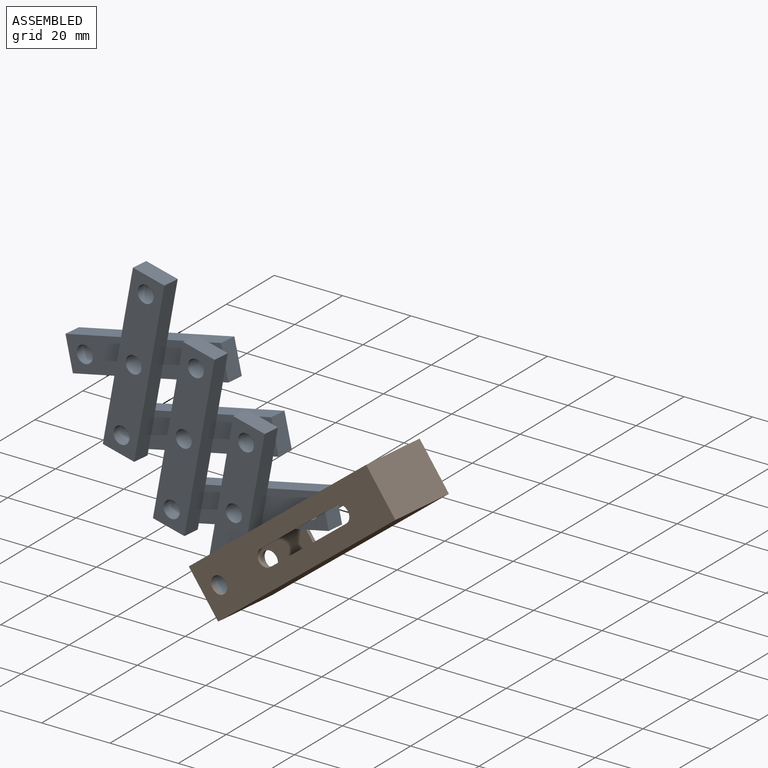
[diagram: assembled view]
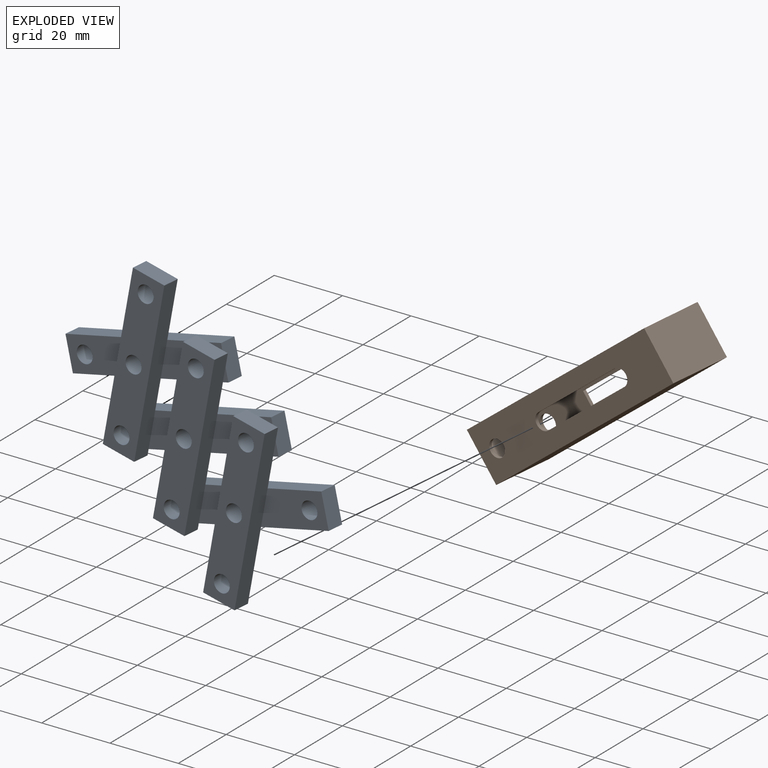
[diagram: exploded view]
GUIDED TOUR — MATED ASSEMBLY WITH SUBASSEMBLIES (Onshape document 298fe6a780f7013b7bb20763, AutoMate assembly 298fe6a780f7013b7bb20763_8cd86269bdc9ea71f313149d_1a75f54e7f84674586b4b7e1_default)

This assembly has 7 component occurrences arranged in 2 top-level units: 1 individual components plus 1 subassembly (S0). The tour has two levels: first the top level, where each subassembly is treated as one rigid unit; then each subassembly is toured internally in its own section (nesting deeper than one subassembly level is flattened into its subassembly's section).

Components are labeled P0..P6 across the whole record; subassembly units are labeled S0..S0. A mate is a constraint between two units; its type names the relative motion it leaves free:
  PARALLEL — keeps the two listed directions parallel,
  REVOLUTE — leaves rotation about the listed axis free (a hinge).
Axis/direction vectors are unit vectors and 'through' points are millimeter coordinates, both in the assembly's world frame.

TOP-LEVEL MATES (between units; each subassembly's internal mates are listed in its own section)
  1. PARALLEL "Parallel 1": S0 <-> P5, direction (-0.086, -0.996, 0.010) through (69.50, -30.16, -67.81) mm
  2. REVOLUTE "Revolute 2": S0 <-> P5, axis (-0.086, -0.996, 0.010) through (46.11, -33.41, -92.24) mm

TOP-LEVEL ASSEMBLY ORDER
  1. S0 — the base component [order verified]
  2. P5 [order verified]
Order-tag legend:
  [order verified] — this step's position reverses a verified removal order: the component was checked to insert without passing through the ones already placed.

Of the 7 component occurrences, 7 carry the full construction recipe — the FeatureScript program that regenerates the part's solid from scratch; the rest are supplied as boundary geometry only. Each toured unit is shown spotlighted twice — assembled, then exploded with a leader line back to its socket (green = recipe-attached component, orange = geometry-only, blue = subassembly unit; the rest desaturated gray).
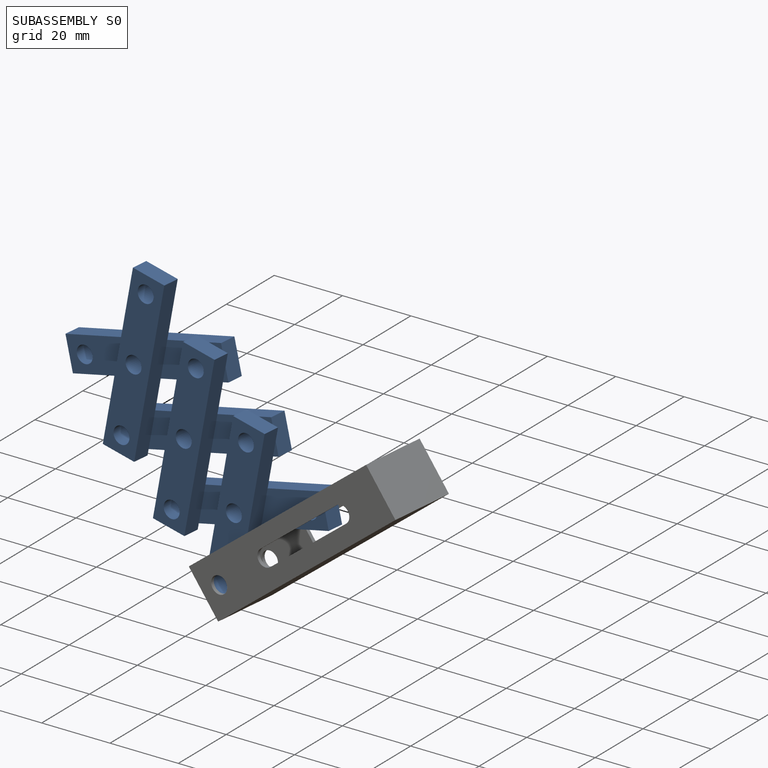
[diagram: subassembly S0 — assembled]
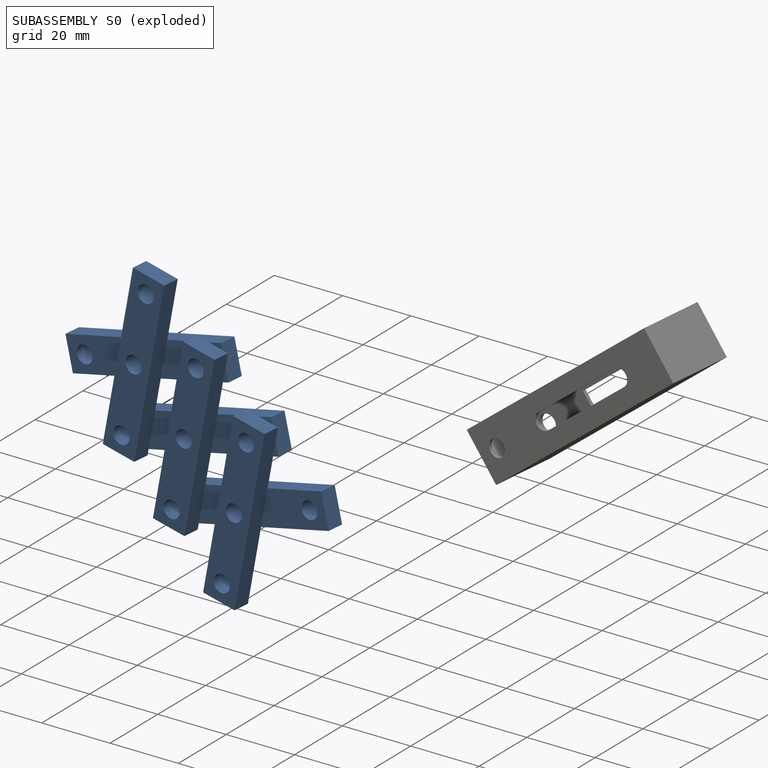
[diagram: subassembly S0 — exploded]
SUBASSEMBLY S0 — 6 components (P0, P1, P2, P3, P4, P6), of which 6 recipe-attached; toured below.
Held by: PARALLEL mate "Parallel 1" to P5; REVOLUTE mate "Revolute 2" to P5.
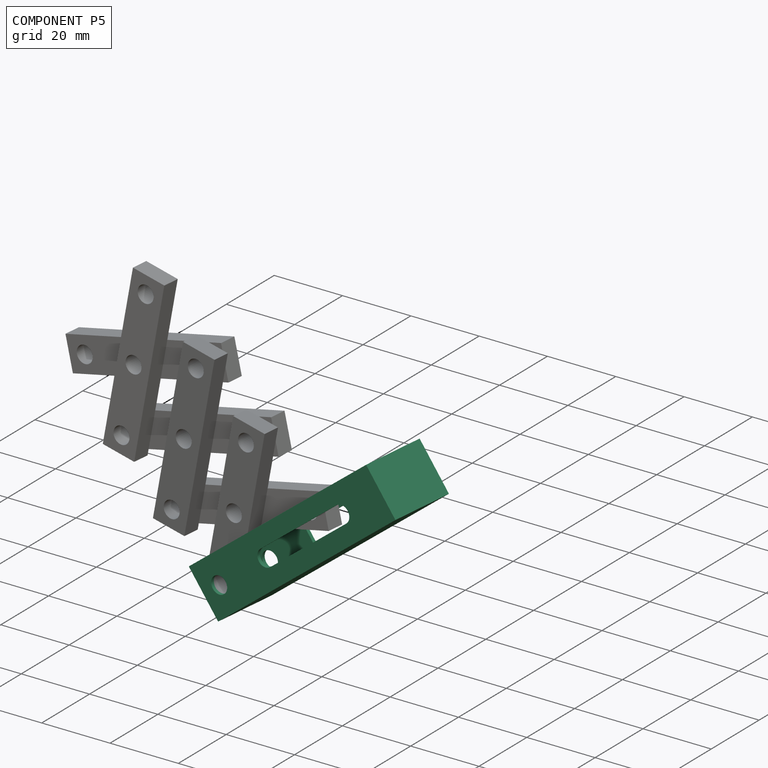
[diagram: component P5 — assembled]
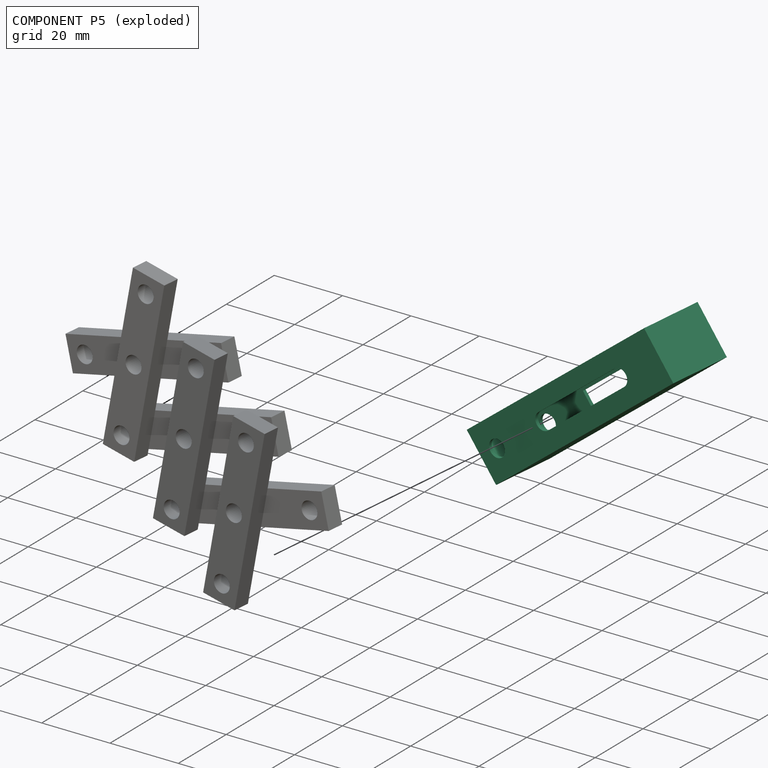
[diagram: component P5 — exploded]
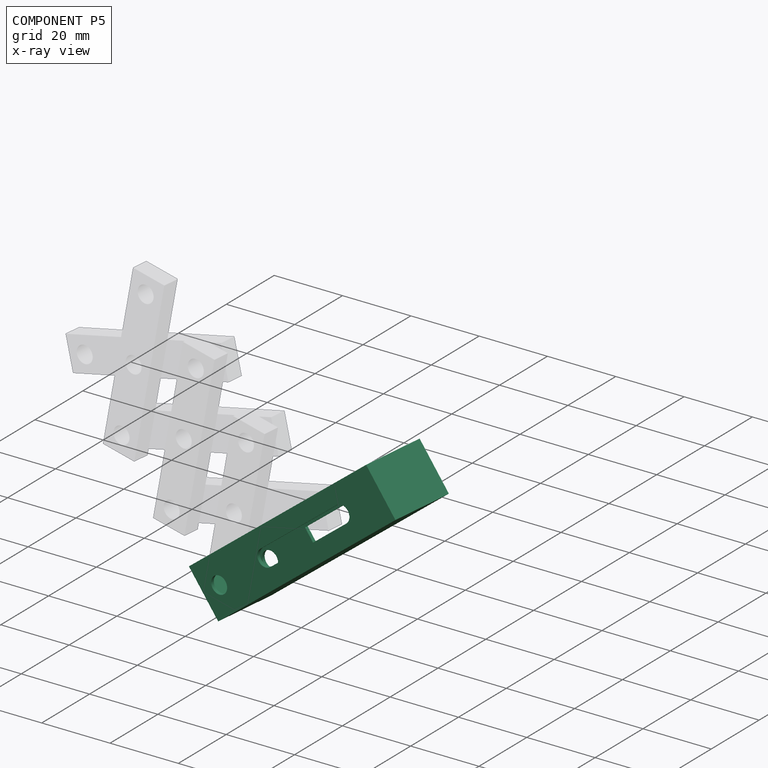
[diagram: component P5 — x-ray view]
COMPONENT P5 — recipe-attached (CADFS 00946091, mesh-verified: the recipe's output STEP matches this component's geometry to below the mesh-comparison resolution (tessellation chordal tolerance ~0.111 mm)).
Held by: PARALLEL mate "Parallel 1" to P0; REVOLUTE mate "Revolute 2" to P0.
Construction recipe (FeatureScript — the CAD program that rebuilds this solid; sketch coordinates are in the units given by the * unit suffixes, e.g. mm):

FeatureScript 1511;
import(path : "onshape/std/geometry.fs", version : "1511.0");
import(path : "onshape/std/common.fs", version : "1511.0");
const mm = millimeter;
const VERTEX = EntityType.VERTEX;
const EDGE = EntityType.EDGE;
const FACE = EntityType.FACE;
const BODY = EntityType.BODY;
function v(x, y){return vector(x, y);}
function OD(order){return orderDisambiguation(order);}
function OSD(set){return originalSetDisambiguation(set);}
function TD(topology){return topologyDisambiguation(topology);}
function TDD(query){return trueDependencyDisambiguation(query);}
function sQuery(a, b, c) {return sketchEntityQuery(a, b, c);}

annotation { "Feature Type Name" : "Feature", "Feature Type Description" : "" }
export const myFeature = defineFeature(function(context is Context, id is Id, definition is map)
    precondition{}
    {
        {
            var Q0;
            Q0=qCreatedBy(makeId("Top.planeOp"),FACE);
            var sketch = newSketch(context, id + "F0", { "sketchPlane" : qUnion([Q0])});
            skLineSegment(sketch, "E0.bottom", {"start": v(35, -8.41) * mm, "end": v(-35, -8.41) * mm});
            skLineSegment(sketch, "E0.top", {"start": v(35, 11.59) * mm, "end": v(-35, 11.59) * mm});
            skLineSegment(sketch, "E0.left", {"start": v(35, -8.41) * mm, "end": v(35, 11.59) * mm});
            skLineSegment(sketch, "E0.right", {"start": v(-35, -8.41) * mm, "end": v(-35, 11.59) * mm});
            skPoint(sketch, "E0.middle", {"position": v(0, 1.59) * mm});
            skSolve(sketch);
        }
        {
            var Q0;
            Q0=makeQuery(id+"F0.imprint","IMPRINT",FACE,{"disambiguationData":[TD([[makeQuery(id+"F0.imprint","IMPRINT",EDGE,{"derivedFrom":sQuery(id+"F0.wireOp",EDGE,"E0.bottom")}),-1.0]])]});
            extrude(context, id + "F1", {"entities" : qUnion([Q0]), "depth" : 15 * mm, "offsetDistance" : 25 * mm});
        }
        {
            var Q0;
            Q0=makeQuery(id+"F1.opExtrude","SWEPT_FACE",FACE,{"disambiguationData":[OSD([sQuery(id+"F0.wireOp",EDGE,"E0.bottom")])]});
            var sketch = newSketch(context, id + "F2", { "sketchPlane" : qUnion([Q0])});
            skCircle(sketch, "E1", {"center": v(-28.81, 7.5) * mm, "radius": 2.5 * mm});
            skPoint(sketch, "E2.middle", {"position": v(4.53, 7.63) * mm});
            skLineSegment(sketch, "E3.bottom", {"start": v(22.03, 5.13) * mm, "end": v(-12.97, 5.13) * mm});
            skLineSegment(sketch, "E3.top", {"start": v(22.03, 10.13) * mm, "end": v(-12.97, 10.13) * mm});
            skLineSegment(sketch, "E3.left", {"start": v(22.03, 5.13) * mm, "end": v(22.03, 10.13) * mm});
            skLineSegment(sketch, "E3.right", {"start": v(-12.97, 5.13) * mm, "end": v(-12.97, 10.13) * mm});
            skSolve(sketch);
        }
        {
            var Q0;
            Q0=makeQuery(id+"F1.opExtrude","CAP_FACE",FACE,{"disambiguationData":[OSD([sQuery(id+"F0.wireOp",EDGE,"E0.bottom"),sQuery(id+"F0.wireOp",EDGE,"E0.top"),sQuery(id+"F0.wireOp",EDGE,"E0.left"),sQuery(id+"F0.wireOp",EDGE,"E0.right")])],"isStart":false});
            shell(context, id + "F3", {"entities" : qUnion([Q0]), "thickness" : 1 * mm});
        }
        {
            var Q0;
            Q0=sQuery(id+"F2.wireOp",VERTEX,"E1.center");
            var Q1;
            Q1=makeQuery(id+"F1.opExtrude","SWEPT_BODY",BODY,{"disambiguationData":[OSD([sQuery(id+"F0.wireOp",EDGE,"E0.bottom"),sQuery(id+"F0.wireOp",EDGE,"E0.top"),sQuery(id+"F0.wireOp",EDGE,"E0.left"),sQuery(id+"F0.wireOp",EDGE,"E0.right")])]});
            hole(context, id + "F4", {"style" : HoleStyle.SIMPLE, "endStyle" : HoleEndStyle.THROUGH, "holeDiameter" : 5 * mm, "majorDiameter" : 5 * mm, "isTappedThrough" : true, "tappedDepth" : 12 * mm, "tapClearance" : 3, "locations" : qUnion([Q0]), "scope" : qUnion([Q1])});
        }
        {
            var Q0;
            Q0=makeQuery(id+"F2.imprint","IMPRINT",FACE,{"disambiguationData":[TD([[makeQuery(id+"F2.imprint","IMPRINT",EDGE,{"derivedFrom":sQuery(id+"F2.wireOp",EDGE,"E3.bottom")}),-1.0]])]});
            extrude(context, id + "F5", {"entities" : qUnion([Q0]), "operationType" : NewBodyOperationType.REMOVE, "oppositeDirection" : true, "depth" : 25 * mm, "offsetDistance" : 25 * mm});
        }
        {
            var Q0;
            {var subQ0=sQuery(id+"F0.wireOp",EDGE,"E0.bottom");var subQ1=sQuery(id+"F2.wireOp",EDGE,"E3.top");var subQ2=sQuery(id+"F2.wireOp",EDGE,"E3.right");Q0=makeQuery(id+"F5.boolean.opBoolean","COPY",EDGE,{"disambiguationData":[TD([makeQuery(id+"F1.opExtrude","SWEPT_FACE",FACE,{"disambiguationData":[OSD([subQ0])]})])],"derivedFrom":makeQuery(id+"F5.opExtrude","SWEPT_EDGE",EDGE,{"disambiguationData":[OSD([subQ1,subQ2])]})});}
            var Q1;
            {var subQ0=sQuery(id+"F0.wireOp",EDGE,"E0.bottom");var subQ1=sQuery(id+"F2.wireOp",EDGE,"E3.bottom");var subQ2=sQuery(id+"F2.wireOp",EDGE,"E3.right");Q1=makeQuery(id+"F5.boolean.opBoolean","COPY",EDGE,{"disambiguationData":[TD([makeQuery(id+"F1.opExtrude","SWEPT_FACE",FACE,{"disambiguationData":[OSD([subQ0])]})])],"derivedFrom":makeQuery(id+"F5.opExtrude","SWEPT_EDGE",EDGE,{"disambiguationData":[OSD([subQ1,subQ2])]})});}
            var Q2;
            {var subQ0=sQuery(id+"F0.wireOp",EDGE,"E0.bottom");var subQ1=sQuery(id+"F2.wireOp",EDGE,"E3.left");var subQ2=sQuery(id+"F2.wireOp",EDGE,"E3.bottom");Q2=makeQuery(id+"F5.boolean.opBoolean","COPY",EDGE,{"disambiguationData":[TD([makeQuery(id+"F1.opExtrude","SWEPT_FACE",FACE,{"disambiguationData":[OSD([subQ0])]})])],"derivedFrom":makeQuery(id+"F5.opExtrude","SWEPT_EDGE",EDGE,{"disambiguationData":[OSD([subQ2,subQ1])]})});}
            var Q3;
            {var subQ0=sQuery(id+"F0.wireOp",EDGE,"E0.bottom");var subQ1=sQuery(id+"F2.wireOp",EDGE,"E3.left");var subQ2=sQuery(id+"F2.wireOp",EDGE,"E3.top");Q3=makeQuery(id+"F5.boolean.opBoolean","COPY",EDGE,{"disambiguationData":[TD([makeQuery(id+"F1.opExtrude","SWEPT_FACE",FACE,{"disambiguationData":[OSD([subQ0])]})])],"derivedFrom":makeQuery(id+"F5.opExtrude","SWEPT_EDGE",EDGE,{"disambiguationData":[OSD([subQ2,subQ1])]})});}
            fillet(context, id + "F6", {"entities" : qUnion([Q0, Q1, Q2, Q3]), "radius" : 2.5 * mm, "tangentPropagation" : true, "allowEdgeOverflow" : false});
        }
    });
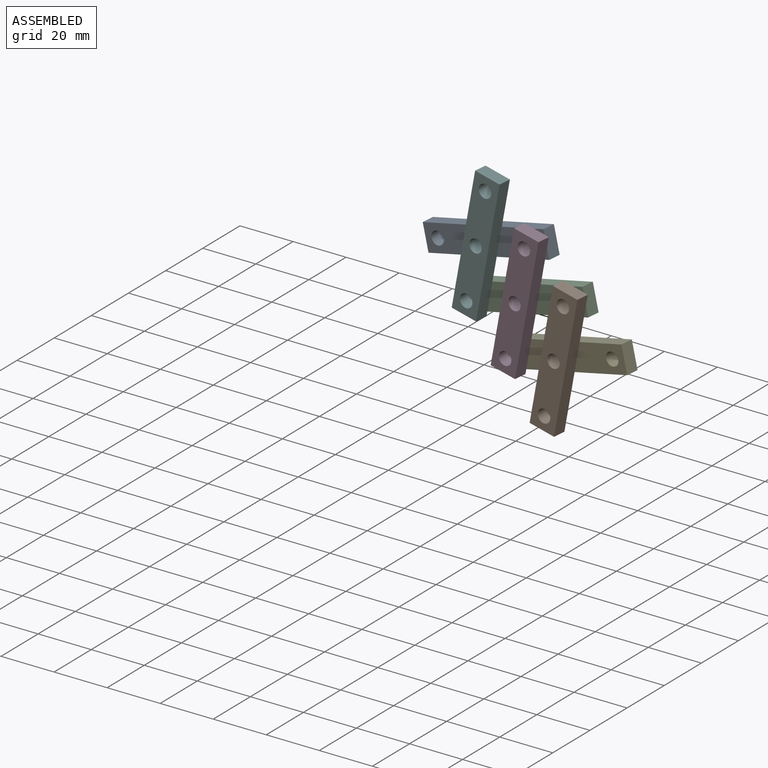
[diagram: subassembly S0 — assembled view]
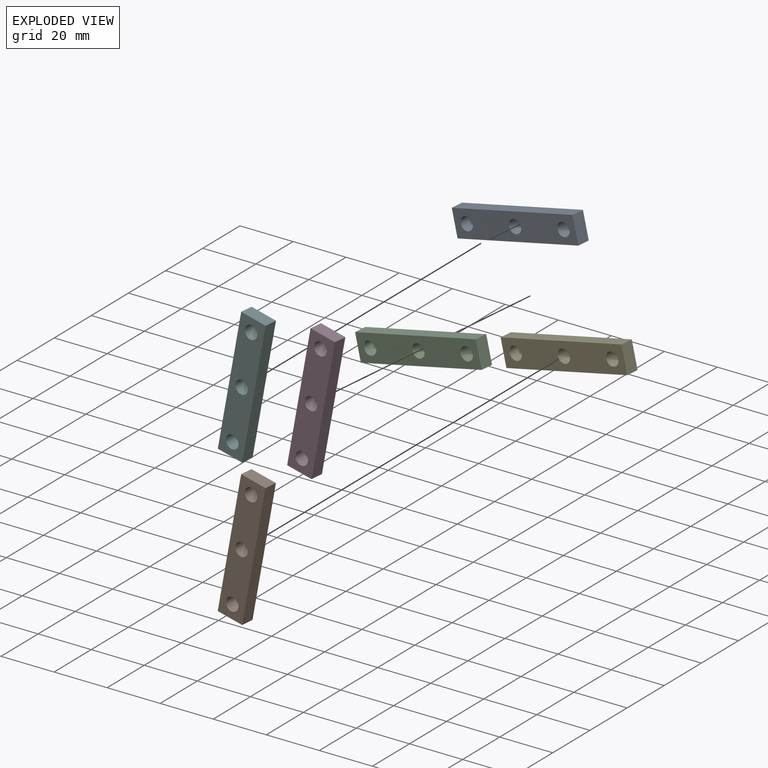
[diagram: subassembly S0 — exploded view]
SUBASSEMBLY S0 TOUR — 6 components, shown here in isolation at its own camera.

INTERNAL MATES
  1. REVOLUTE "Revolute 3": P0 <-> P3, axis (-0.086, -0.996, 0.010) through (38.03, -27.17, -38.08) mm
  2. REVOLUTE "Revolute 5": P1 <-> P2, axis (0.086, 0.996, -0.010) through (53.76, -28.67, -52.94) mm
  3. REVOLUTE "Revolute 7": P4 <-> P1, axis (-0.086, -0.996, 0.010) through (50.15, -28.55, -72.61) mm
  4. REVOLUTE "Revolute 2": P6 <-> P2, axis (0.086, 0.996, -0.010) through (15.07, -25.43, -62.56) mm
  5. REVOLUTE "Revolute 6": P3 <-> P4, axis (0.086, 0.996, -0.010) through (30.80, -26.93, -77.42) mm
  6. REVOLUTE "Revolute 4": P0 <-> P6, axis (-0.086, -0.996, 0.010) through (18.68, -25.55, -42.89) mm
  7. REVOLUTE "Revolute 1": P2 <-> P3, axis (-0.086, -0.996, 0.010) through (34.42, -27.05, -57.75) mm
  8. REVOLUTE "Revolute 6": P3 <-> P4, axis (0.086, 0.996, -0.010) through (30.80, -26.93, -77.42) mm
  9. REVOLUTE "Revolute 2": P6 <-> P2, axis (0.086, 0.996, -0.010) through (15.07, -25.43, -62.56) mm
  10. REVOLUTE "Revolute 4": P0 <-> P6, axis (-0.086, -0.996, 0.010) through (18.68, -25.55, -42.89) mm
  11. REVOLUTE "Revolute 5": P1 <-> P2, axis (0.086, 0.996, -0.010) through (53.76, -28.67, -52.94) mm
  12. REVOLUTE "Revolute 3": P0 <-> P3, axis (-0.086, -0.996, 0.010) through (38.03, -27.17, -38.08) mm
  13. REVOLUTE "Revolute 1": P2 <-> P3, axis (-0.086, -0.996, 0.010) through (34.42, -27.05, -57.75) mm
  14. REVOLUTE "Revolute 7": P4 <-> P1, axis (-0.086, -0.996, 0.010) through (50.15, -28.55, -72.61) mm

ASSEMBLY ORDER (within the subassembly)
  1. P4 — the base component [order verified]
  2. P0 [order verified]
  3. P2 [order verified]
  4. P3 [order verified]
  5. P6 [order verified]
  6. P1 [order verified]
Order-tag legend:
  [order verified] — this step's position reverses a verified removal order: the component was checked to insert without passing through the ones already placed.
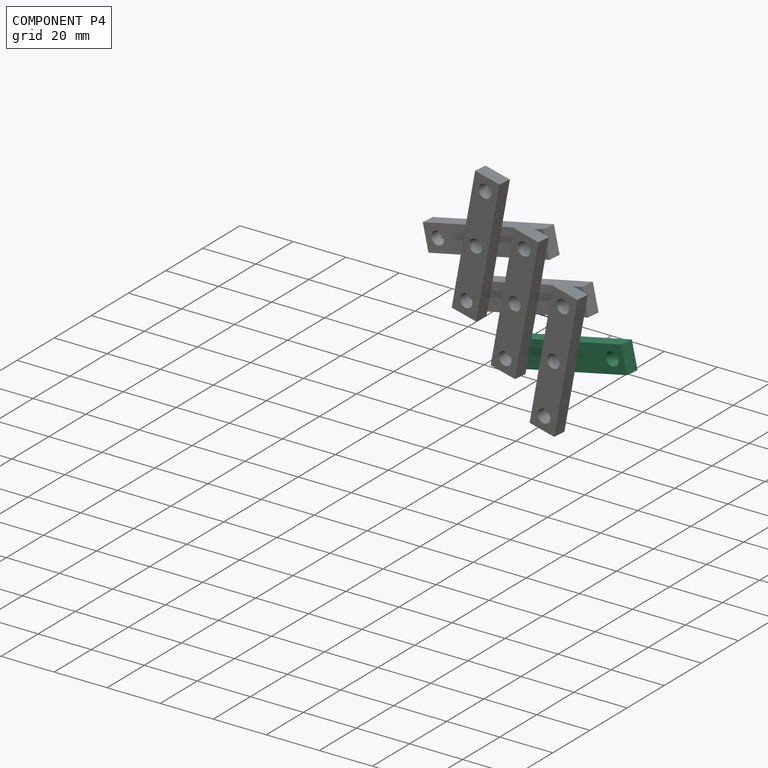
[diagram: component P4 — assembled]
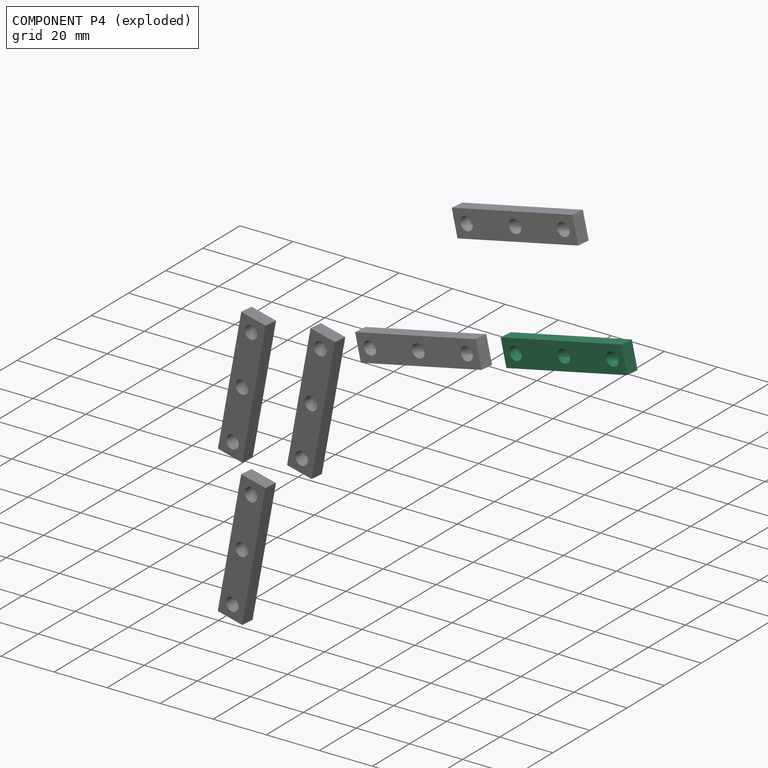
[diagram: component P4 — exploded]
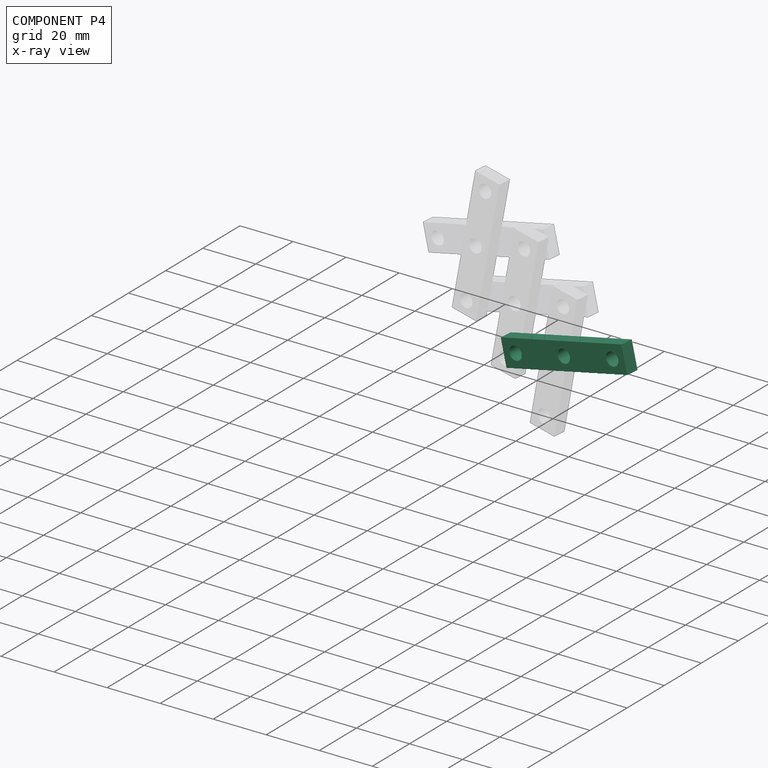
[diagram: component P4 — x-ray view]
COMPONENT P4 — same part as P0 (CADFS 00946090); its construction recipe is shown at P0.
Held by: REVOLUTE mate "Revolute 7" to P1; REVOLUTE mate "Revolute 6" to P3; REVOLUTE mate "Revolute 6" to P3; REVOLUTE mate "Revolute 7" to P1.
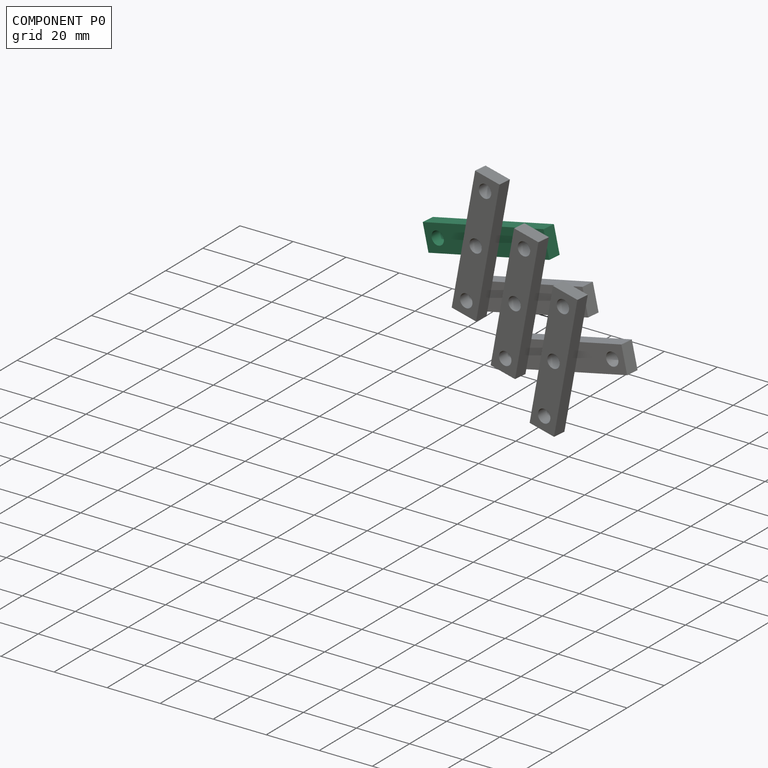
[diagram: component P0 — assembled]
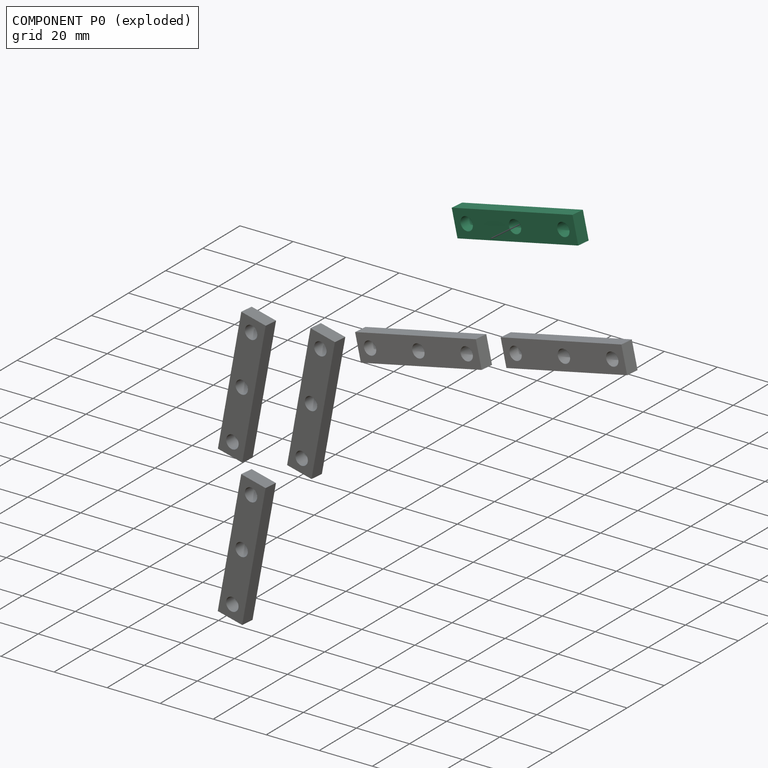
[diagram: component P0 — exploded]
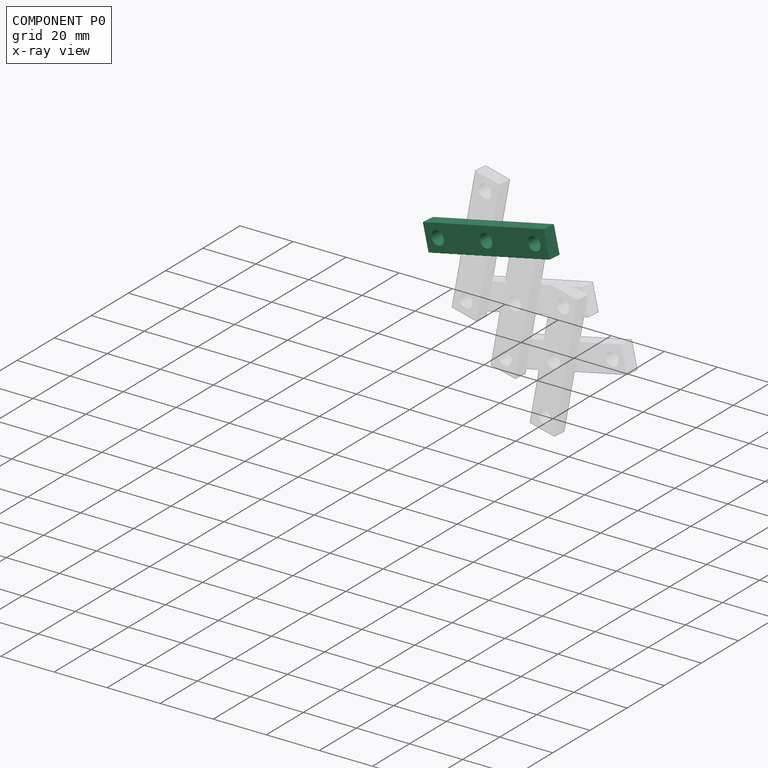
[diagram: component P0 — x-ray view]
COMPONENT P0 — recipe-attached (CADFS 00946090, mesh-verified: the recipe's output STEP matches this component's geometry to below the mesh-comparison resolution (tessellation chordal tolerance ~0.0769 mm)).
Held by: REVOLUTE mate "Revolute 3" to P3; REVOLUTE mate "Revolute 4" to P6; REVOLUTE mate "Revolute 4" to P6; REVOLUTE mate "Revolute 3" to P3.
Construction recipe (FeatureScript — the CAD program that rebuilds this solid; sketch coordinates are in the units given by the * unit suffixes, e.g. mm):

FeatureScript 1511;
import(path : "onshape/std/geometry.fs", version : "1511.0");
import(path : "onshape/std/common.fs", version : "1511.0");
const mm = millimeter;
const VERTEX = EntityType.VERTEX;
const EDGE = EntityType.EDGE;
const FACE = EntityType.FACE;
const BODY = EntityType.BODY;
function v(x, y){return vector(x, y);}
function OD(order){return orderDisambiguation(order);}
function OSD(set){return originalSetDisambiguation(set);}
function TD(topology){return topologyDisambiguation(topology);}
function TDD(query){return trueDependencyDisambiguation(query);}
function sQuery(a, b, c) {return sketchEntityQuery(a, b, c);}

annotation { "Feature Type Name" : "Feature", "Feature Type Description" : "" }
export const myFeature = defineFeature(function(context is Context, id is Id, definition is map)
    precondition{}
    {
        {
            var Q0;
            Q0=qCreatedBy(makeId("Front.planeOp"),FACE);
            var sketch = newSketch(context, id + "F0", { "sketchPlane" : qUnion([Q0])});
            skLineSegment(sketch, "E0.bottom", {"start": v(25, -5) * mm, "end": v(-25, -5) * mm});
            skLineSegment(sketch, "E0.top", {"start": v(25, 5) * mm, "end": v(-25, 5) * mm});
            skLineSegment(sketch, "E0.left", {"start": v(25, -5) * mm, "end": v(25, 5) * mm});
            skLineSegment(sketch, "E0.right", {"start": v(-25, -5) * mm, "end": v(-25, 5) * mm});
            skPoint(sketch, "E0.middle", {"position": v(0, 0) * mm});
            skSolve(sketch);
        }
        {
            var Q0;
            Q0=makeQuery(id+"F0.imprint","IMPRINT",FACE,{"disambiguationData":[TD([[makeQuery(id+"F0.imprint","IMPRINT",EDGE,{"derivedFrom":sQuery(id+"F0.wireOp",EDGE,"E0.bottom")}),-1.0]])]});
            var sketch = newSketch(context, id + "F1", { "sketchPlane" : qUnion([Q0])});
            skCircle(sketch, "E1", {"center": v(0, 0) * mm, "radius": 2.5 * mm});
            skCircle(sketch, "E2", {"center": v(-20, 0) * mm, "radius": 2.5 * mm});
            skCircle(sketch, "E3", {"center": v(20, 0) * mm, "radius": 2.5 * mm});
            skSolve(sketch);
        }
        {
            var Q0;
            Q0=makeQuery(id+"F1.imprint","IMPRINT",FACE,{"disambiguationData":[TD([[makeQuery(id+"F1.imprint","IMPRINT",EDGE,{"derivedFrom":sQuery(id+"F1.wireOp",EDGE,"E1")}),-1.0]])]});
            extrude(context, id + "F2", {"entities" : qUnion([Q0]), "depth" : 5 * mm, "offsetDistance" : 25 * mm});
        }
    });
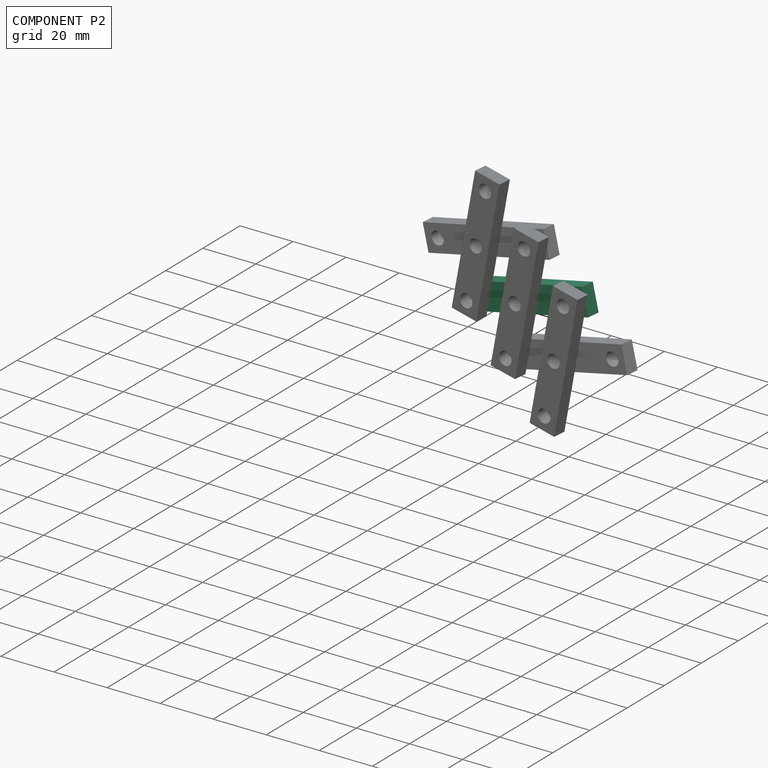
[diagram: component P2 — assembled]
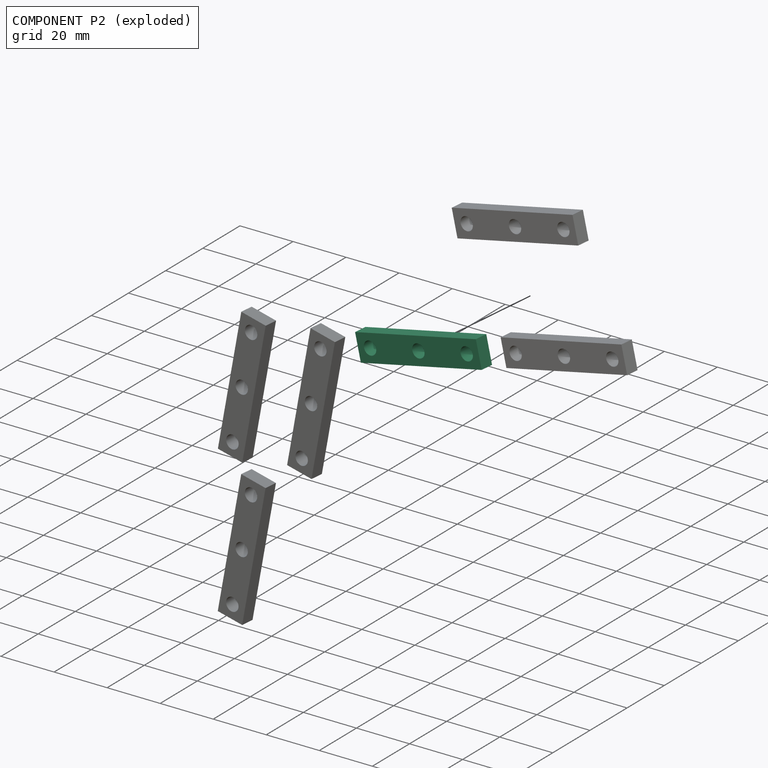
[diagram: component P2 — exploded]
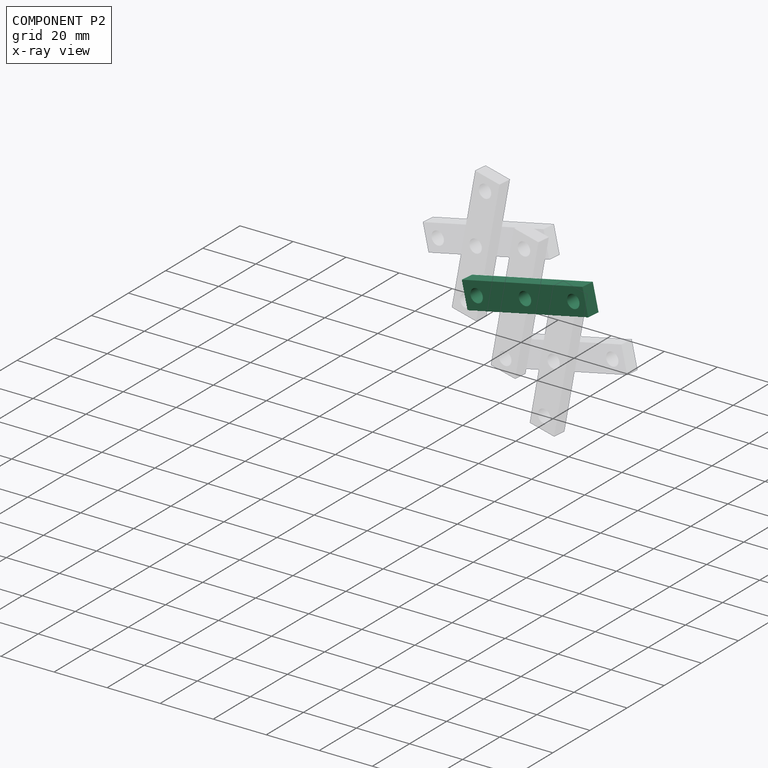
[diagram: component P2 — x-ray view]
COMPONENT P2 — same part as P0 (CADFS 00946090); its construction recipe is shown at P0.
Held by: REVOLUTE mate "Revolute 5" to P1; REVOLUTE mate "Revolute 2" to P6; REVOLUTE mate "Revolute 1" to P3; REVOLUTE mate "Revolute 2" to P6; REVOLUTE mate "Revolute 5" to P1; REVOLUTE mate "Revolute 1" to P3.
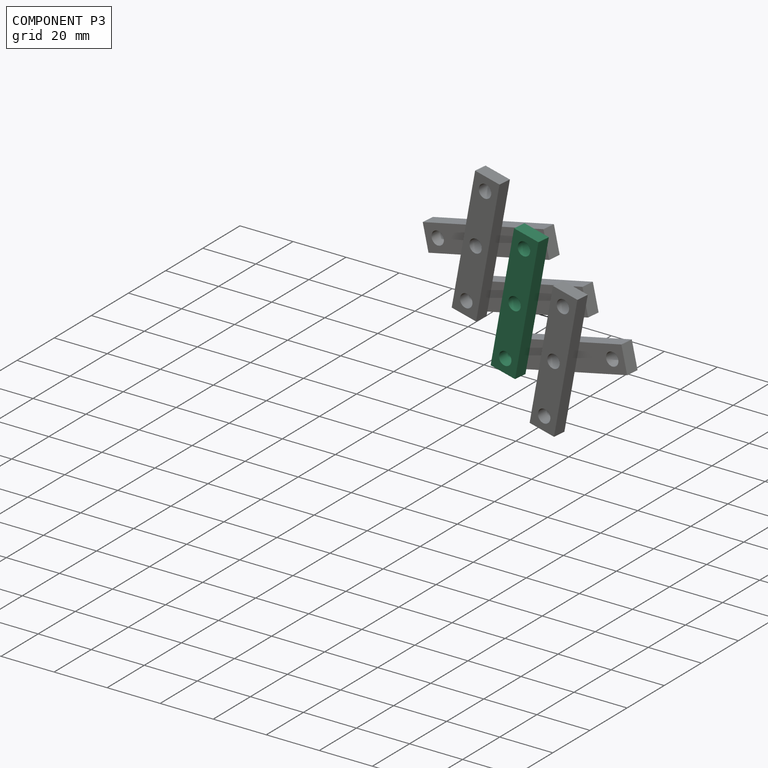
[diagram: component P3 — assembled]
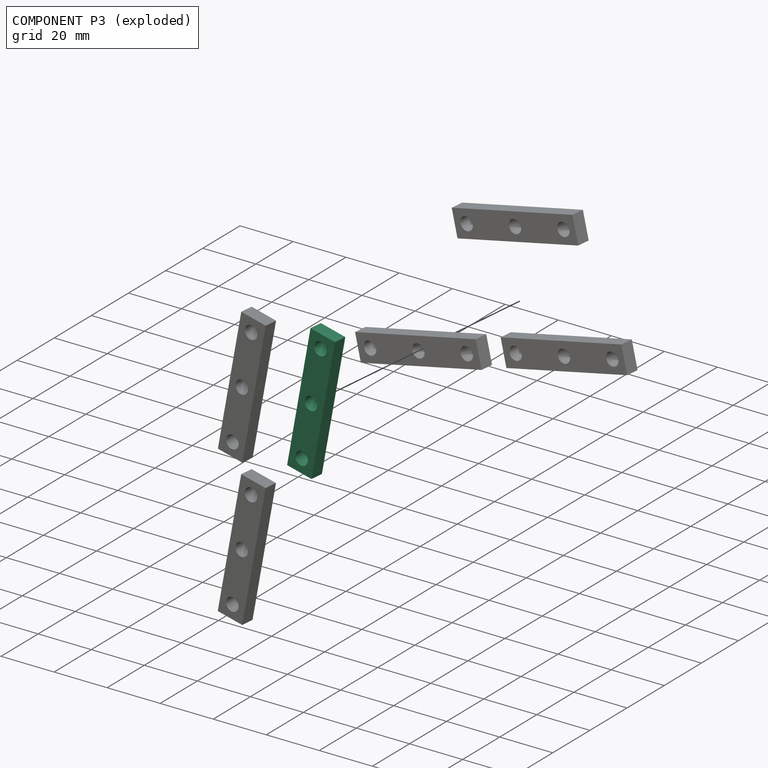
[diagram: component P3 — exploded]
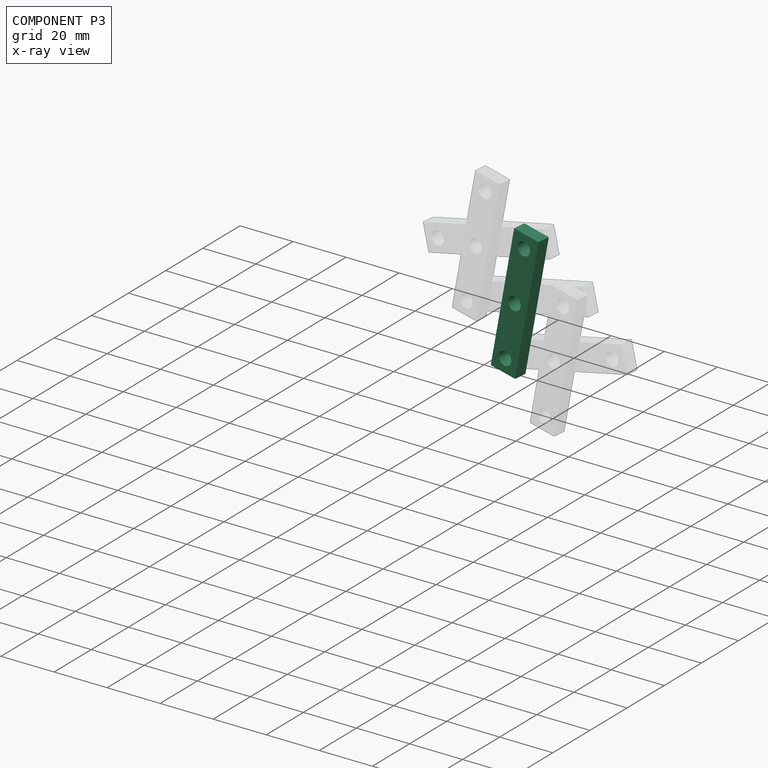
[diagram: component P3 — x-ray view]
COMPONENT P3 — same part as P0 (CADFS 00946090); its construction recipe is shown at P0.
Held by: REVOLUTE mate "Revolute 3" to P0; REVOLUTE mate "Revolute 6" to P4; REVOLUTE mate "Revolute 1" to P2; REVOLUTE mate "Revolute 6" to P4; REVOLUTE mate "Revolute 3" to P0; REVOLUTE mate "Revolute 1" to P2.
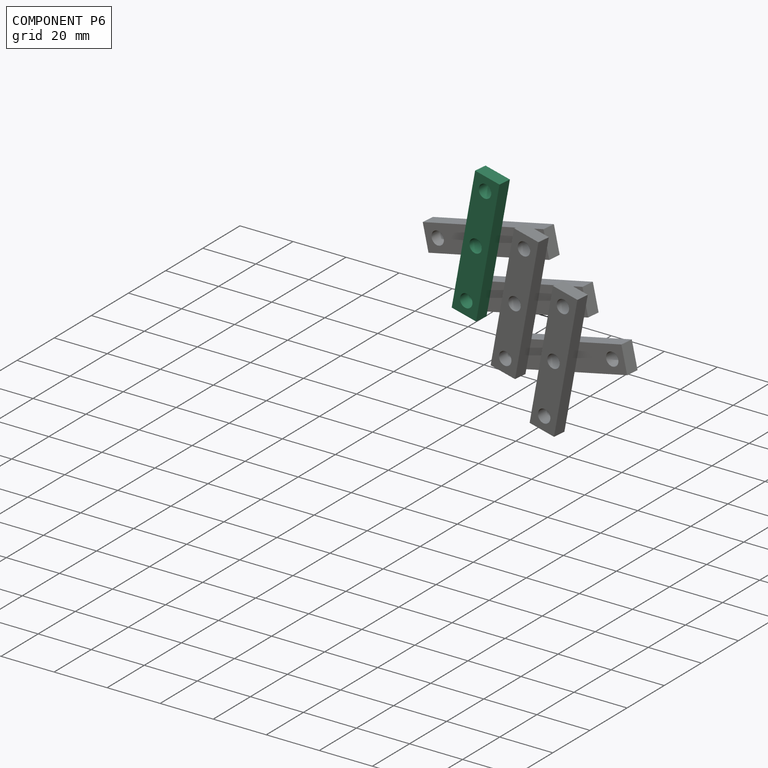
[diagram: component P6 — assembled]
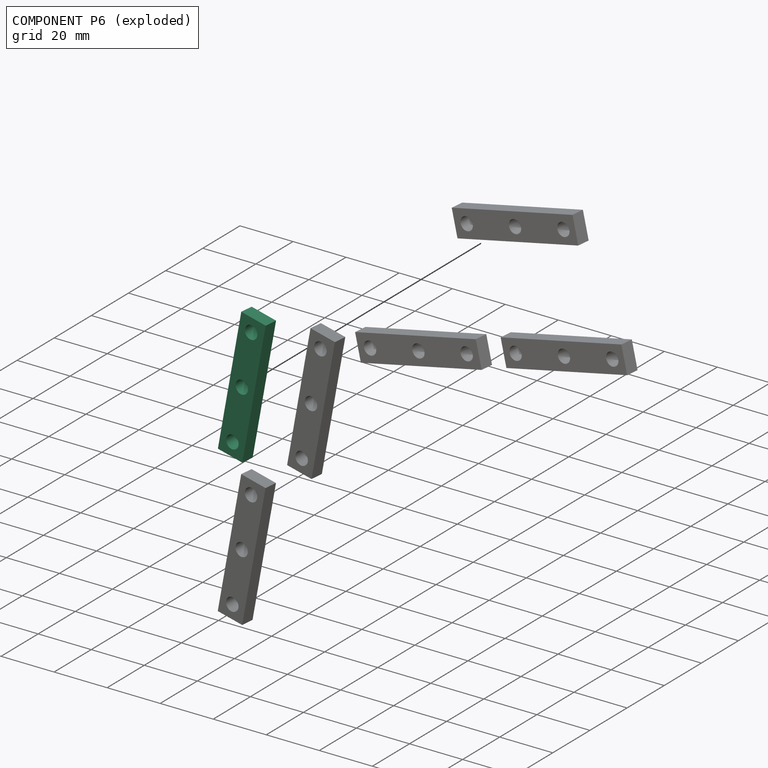
[diagram: component P6 — exploded]
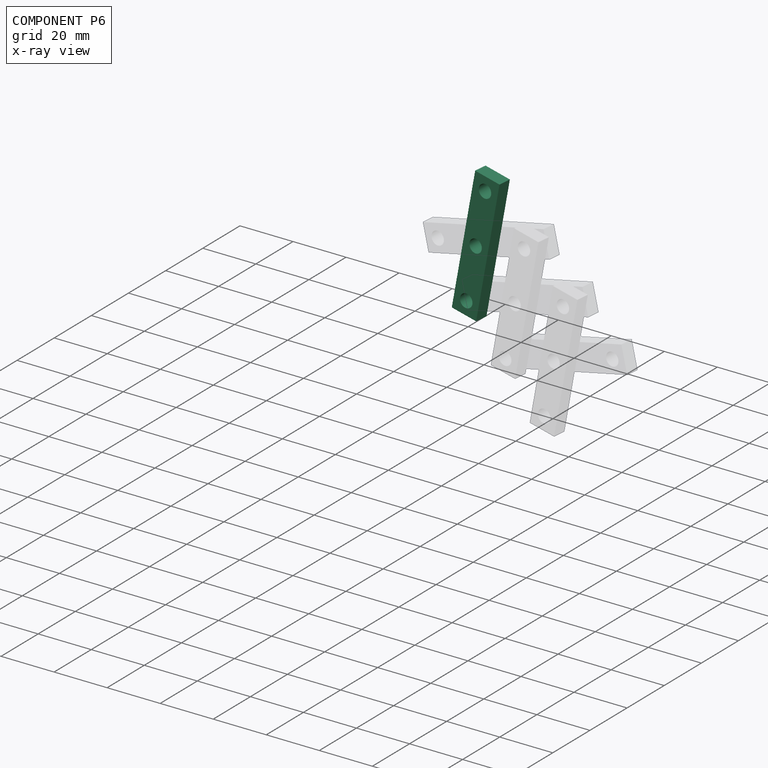
[diagram: component P6 — x-ray view]
COMPONENT P6 — same part as P0 (CADFS 00946090); its construction recipe is shown at P0.
Held by: REVOLUTE mate "Revolute 2" to P2; REVOLUTE mate "Revolute 4" to P0; REVOLUTE mate "Revolute 2" to P2; REVOLUTE mate "Revolute 4" to P0.
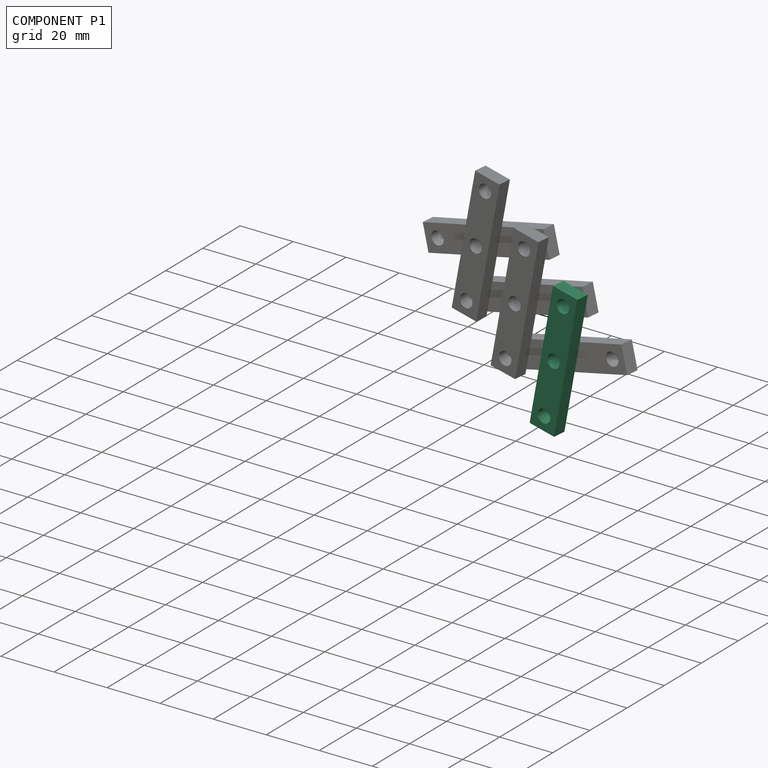
[diagram: component P1 — assembled]
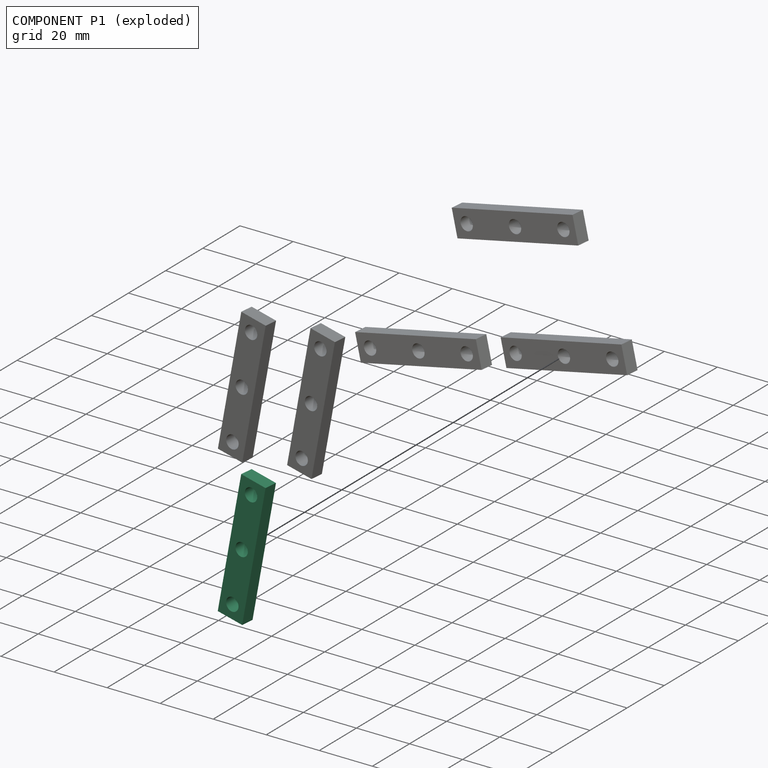
[diagram: component P1 — exploded]
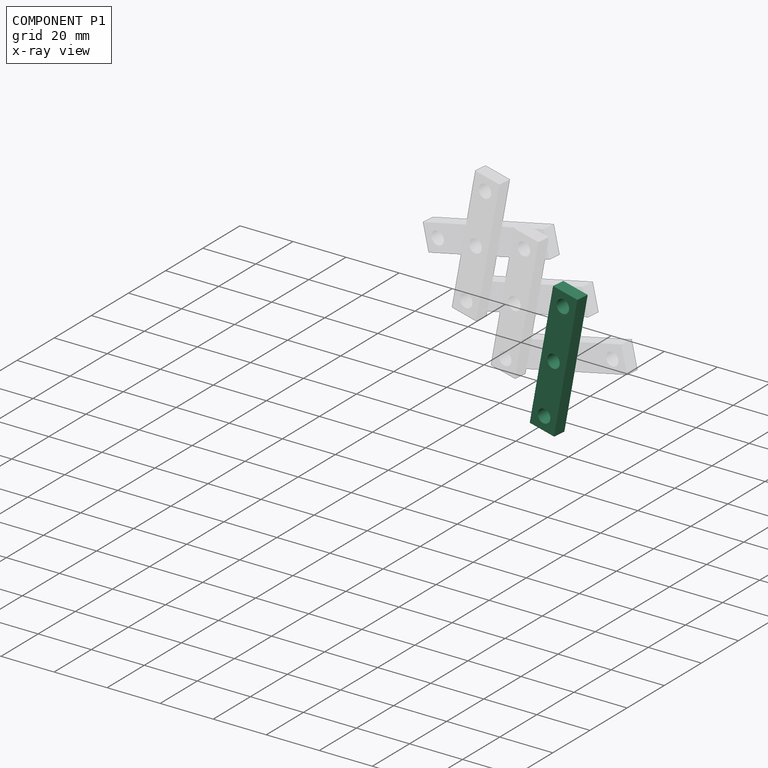
[diagram: component P1 — x-ray view]
COMPONENT P1 — same part as P0 (CADFS 00946090); its construction recipe is shown at P0.
Held by: REVOLUTE mate "Revolute 5" to P2; REVOLUTE mate "Revolute 7" to P4; REVOLUTE mate "Revolute 5" to P2; REVOLUTE mate "Revolute 7" to P4.
PROVENANCE & LICENSES
Assembly (occurrences, transforms, mates, per-part STEP geometry): AutoMate dataset, Zenodo record 7776208, CC0.
Construction recipes: CADFS (HuggingFace VladPyatov/CADFS, CC-BY-4.0, layered over the ABC dataset), FeatureScript reconstruction programs keyed by ABC model id.
Join: ABC meta listings map ABC model id -> Onshape documentId; within a shared document, parts are matched by geometric signature (bounding-box dims + volume at 0.1% relative tolerance, exact B-rep face/solid counts).
Verification: 7 of this assembly's 7 components carry a recipe attachment, and every attachment is mesh-verified: the CADFS STEP and the AutoMate member STEP were compared as meshes in their shared local frame (symmetric sampled-point-to-mesh distance); worst across the 7 attachments: below the mesh-comparison resolution (tessellation chordal tolerance ~0.111 mm) on a 74 mm part.
Renders: orthographic iso camera (az 35 / el 25); the floor grid conveys scale (grid pitch printed in each image; no ruler). In the exploded view each component is displaced by its stored offset vector: the offsets alone carry the explosion direction (mate normal/axis signs are not orientation cues and do not encode it), and separation distances are assigned per mate-chain, not proportionally to assembly-order depth.
